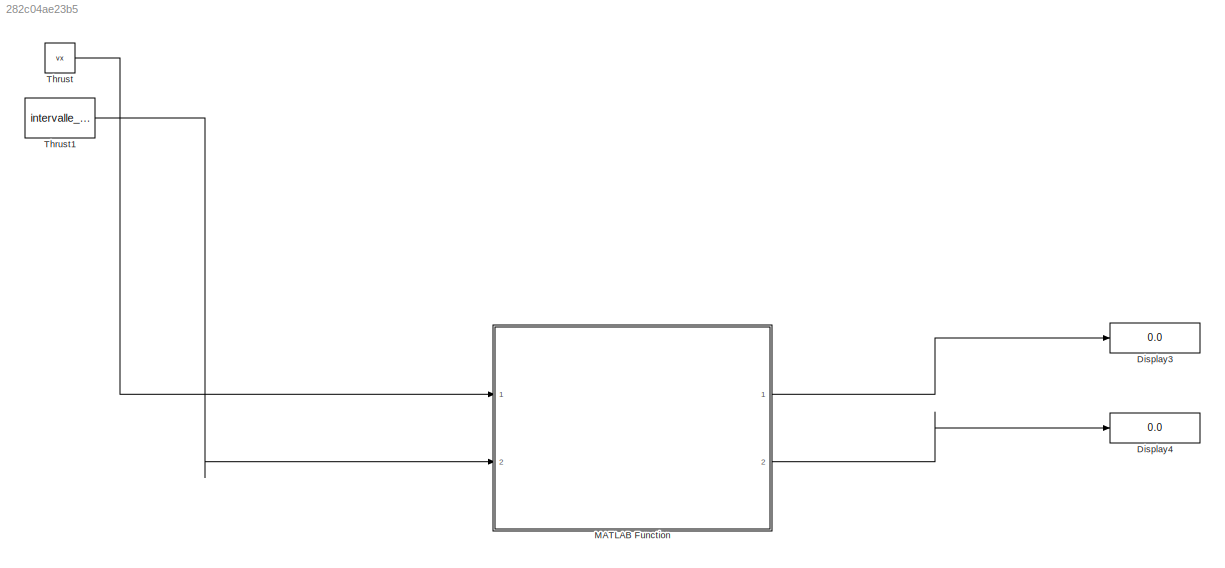
MODEL slx_282c04ae23b5
KIND model
CONFIG AbsTol = auto
CONFIG FixedStep = auto
CONFIG MaxStep = auto
CONFIG MinStep = auto
CONFIG RelTol = 1e-3
CONFIG SampleTimeConstraint = Unconstrained
CONFIG Solver = ode45
CONFIG SolverMode = Auto
CONFIG SolverName = ode45
CONFIG StartTime = 0.0
CONFIG StopTime = 10.0
BLOCK [Display] Display3
  Decimation = 1
  Ports = [1]
BLOCK [Display] Display4
  Decimation = 1
  Ports = [1]
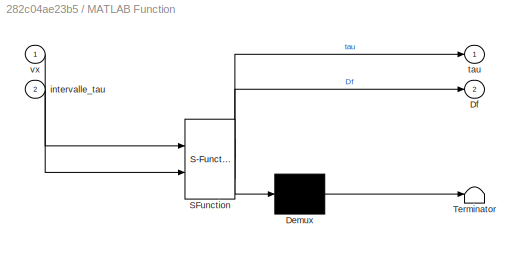
BLOCK [SubSystem] MATLAB Function
  ErrorFcn = Stateflow.Translate.translate
  PermitHierarchicalResolution = ExplicitOnly
  Ports = [2, 2]
  RequestExecContextInheritance = off
  SFBlockType = MATLAB Function
  TreatAsAtomicUnit = on
BLOCK [Demux] MATLAB Function/ Demux 
  Outputs = 1
  Ports = [1, 1]
BLOCK [S-Function] MATLAB Function/ SFunction 
  EnableBusSupport = on
  FunctionName = sf_sfun
  Parameters = SimulinkParam
  PortCounts = [2 3]
  Ports = [2, 3]
  Tag = Stateflow S-Function Simulink_test_tiberlot 2
BLOCK [Terminator] MATLAB Function/ Terminator 
BLOCK [Outport] MATLAB Function/Df
  IconDisplay = Port number
  Port = 2
BLOCK [Inport] MATLAB Function/intervalle_tau
  IconDisplay = Port number
  Port = 2
BLOCK [Outport] MATLAB Function/tau
  IconDisplay = Port number
BLOCK [Inport] MATLAB Function/vx
  IconDisplay = Port number
BLOCK [Constant] Thrust
  Value = vx
BLOCK [Constant] Thrust1
  Value = intervalle_tau
LINE MATLAB Function:1 -> Display3:1
LINE MATLAB Function:2 -> Display4:1
LINE Thrust1:1 -> MATLAB Function:2
LINE Thrust:1 -> MATLAB Function:1
CHART MATLAB Function states=1 transitions=1
  STATE_LABEL 'eML_blk_kernel()'
  STATE_LABEL "SCRIPT:\nfunction [tau,Df] = Call_Savitsky1964_statique_input_vitesse_fcn(vx,intervalle_tau, SimulinkParam)\n% fonction pour caller Savitsky1964_statique_input_vitesse_fcn\n% global g\n% global rho\n% global m L LCG VCG b beta a f epsilon\ncoder.extrinsic('Savitsky1964_statique_input_vitesse_fcn');\n\ntau = 0;Df=0;\nCstData  = SimulinkParam;\n% CstData = 0 ;\n[tau,~,~,Df] = Savitsky1964_statique_input_vitess...<+627ch>"
